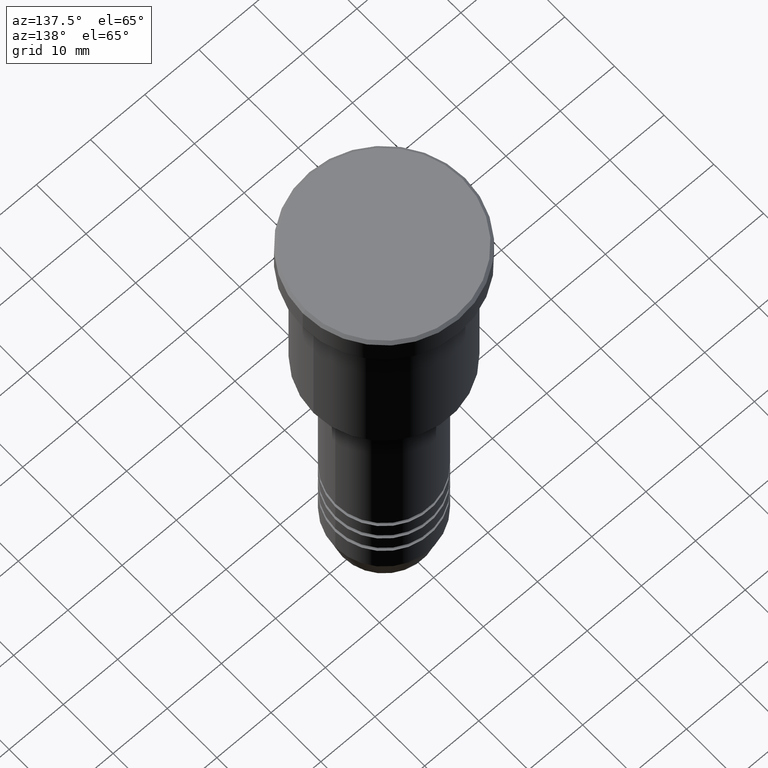
[diagram: clean part render]
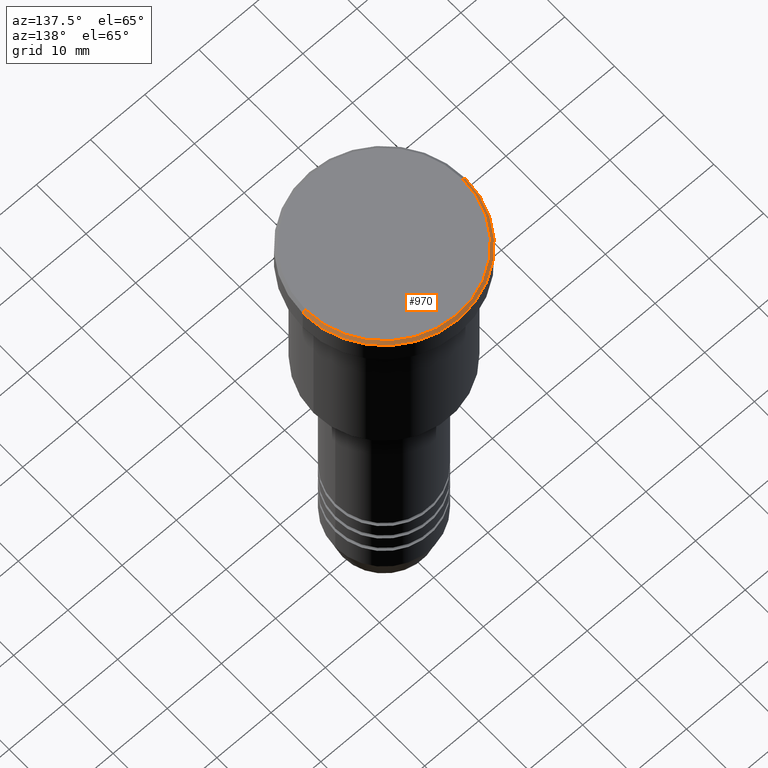
[diagram: same view with one face highlighted and labeled with its STEP entity id]
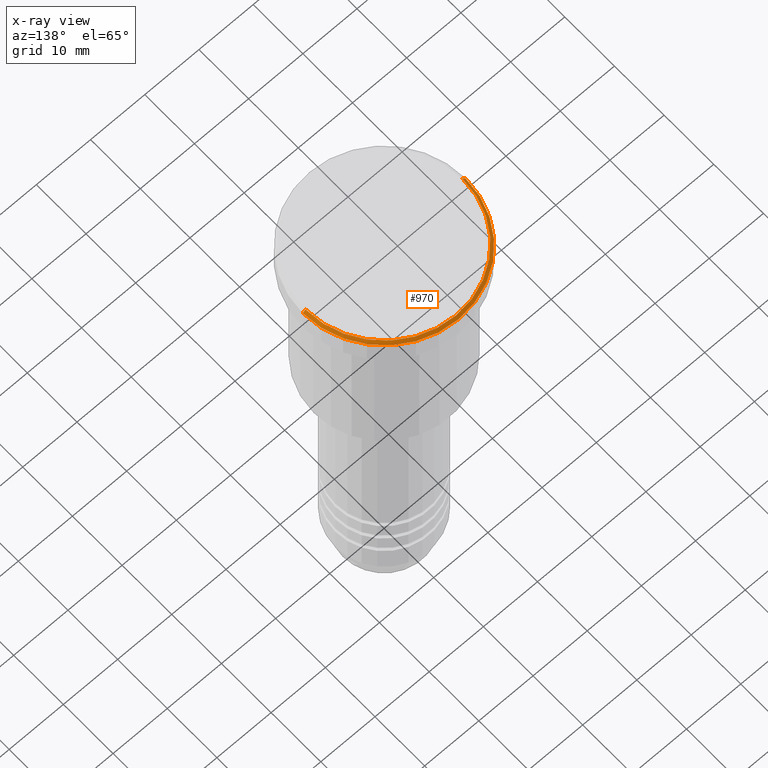
[diagram: x-ray of the same camera — body ghosted, the highlighted face saturated]
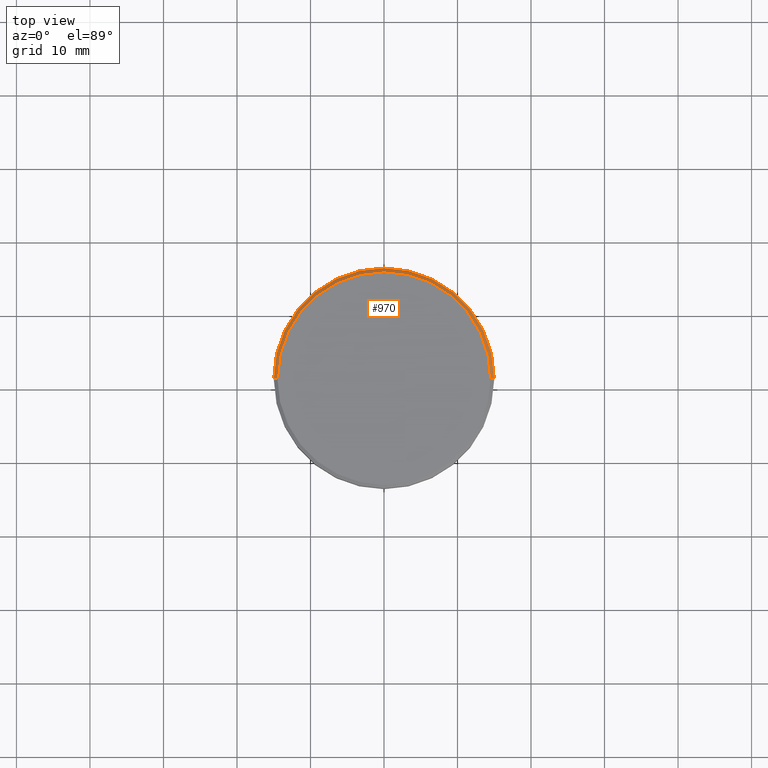
[diagram: same view with one face highlighted and labeled with its STEP entity id]
A machine part, auxiliary view. The second image highlights one B-rep face of the part: STEP entity #970.
The next image is the same camera in x-ray: the body ghosted, the highlighted face saturated — about 0% of this face is hidden behind the body in this view.
A second angle (top view) of the same face is appended — the face is thin or edge-on in the first view.
In plain terms, the highlighted conical surface has half-angle 45 deg.
Its self-contained STEP definition (entity closure, byte-faithful):
#22 = CARTESIAN_POINT ( 'NONE',  ( -14.49999999999998401, 0.000000000000000000, 0.000000000000000000 ) ) ;
#31 = CONICAL_SURFACE ( 'NONE', #726, 14.49999999999998401, 0.7853981633974533860 ) ;
#65 = VERTEX_POINT ( 'NONE', #294 ) ;
#85 = DIRECTION ( 'NONE',  ( 0.7071067811865512365, 8.659560562354979697E-17, -0.7071067811865439090 ) ) ;
#158 = CARTESIAN_POINT ( 'NONE',  ( 0.000000000000000000, 0.000000000000000000, 0.000000000000000000 ) ) ;
#164 = CARTESIAN_POINT ( 'NONE',  ( 0.000000000000000000, 0.000000000000000000, 0.000000000000000000 ) ) ;
#188 = LINE ( 'NONE', #731, #387 ) ;
#194 = DIRECTION ( 'NONE',  ( -0.7071067811865512365, 0.000000000000000000, -0.7071067811865439090 ) ) ;
#235 = ORIENTED_EDGE ( 'NONE', *, *, #670, .F. ) ;
#253 = DIRECTION ( 'NONE',  ( -0.000000000000000000, -0.000000000000000000, 1.000000000000000000 ) ) ;
#266 = ORIENTED_EDGE ( 'NONE', *, *, #992, .F. ) ;
#294 = CARTESIAN_POINT ( 'NONE',  ( 15.00000000000000000, 0.000000000000000000, -0.5000000000000108802 ) ) ;
#303 = VERTEX_POINT ( 'NONE', #22 ) ;
#338 = DIRECTION ( 'NONE',  ( 1.000000000000000000, 0.000000000000000000, 0.000000000000000000 ) ) ;
#342 = VERTEX_POINT ( 'NONE', #582 ) ;
#383 = CIRCLE ( 'NONE', #567, 15.00000000000000000 ) ;
#386 = CIRCLE ( 'NONE', #628, 14.49999999999998401 ) ;
#387 = VECTOR ( 'NONE', #194, 1000.000000000000000 ) ;
#423 = ORIENTED_EDGE ( 'NONE', *, *, #1003, .T. ) ;
#435 = DIRECTION ( 'NONE',  ( -1.000000000000000000, 0.000000000000000000, 0.000000000000000000 ) ) ;
#438 = DIRECTION ( 'NONE',  ( 0.000000000000000000, 0.000000000000000000, -1.000000000000000000 ) ) ;
#451 = VERTEX_POINT ( 'NONE', #528 ) ;
#474 = VECTOR ( 'NONE', #85, 1000.000000000000000 ) ;
#504 = DIRECTION ( 'NONE',  ( 0.000000000000000000, 0.000000000000000000, -1.000000000000000000 ) ) ;
#511 = EDGE_CURVE ( 'NONE', #342, #303, #386, .T. ) ;
#516 = CARTESIAN_POINT ( 'NONE',  ( 0.000000000000000000, 0.000000000000000000, -0.5000000000000108802 ) ) ;
#528 = CARTESIAN_POINT ( 'NONE',  ( -15.00000000000000000, 1.836970198721029589E-15, -0.5000000000000108802 ) ) ;
#544 = LINE ( 'NONE', #915, #474 ) ;
#567 = AXIS2_PLACEMENT_3D ( 'NONE', #516, #438, #872 ) ;
#574 = EDGE_LOOP ( 'NONE', ( #1013, #423, #266, #235 ) ) ;
#582 = CARTESIAN_POINT ( 'NONE',  ( 14.49999999999998401, 1.806354028742345013E-15, 0.000000000000000000 ) ) ;
#628 = AXIS2_PLACEMENT_3D ( 'NONE', #164, #253, #338 ) ;
#670 = EDGE_CURVE ( 'NONE', #303, #451, #188, .T. ) ;
#726 = AXIS2_PLACEMENT_3D ( 'NONE', #158, #504, #435 ) ;
#731 = CARTESIAN_POINT ( 'NONE',  ( -14.49999999999998401, 0.000000000000000000, 0.000000000000000000 ) ) ;
#766 = FACE_OUTER_BOUND ( 'NONE', #574, .T. ) ;
#872 = DIRECTION ( 'NONE',  ( 1.000000000000000000, 0.000000000000000000, 0.000000000000000000 ) ) ;
#915 = CARTESIAN_POINT ( 'NONE',  ( 14.49999999999998401, 1.775737858763660240E-15, 0.000000000000000000 ) ) ;
#970 = ADVANCED_FACE ( 'NONE', ( #766 ), #31, .T. ) ;
#992 = EDGE_CURVE ( 'NONE', #451, #65, #383, .T. ) ;
#1003 = EDGE_CURVE ( 'NONE', #342, #65, #544, .T. ) ;
#1013 = ORIENTED_EDGE ( 'NONE', *, *, #511, .F. ) ;